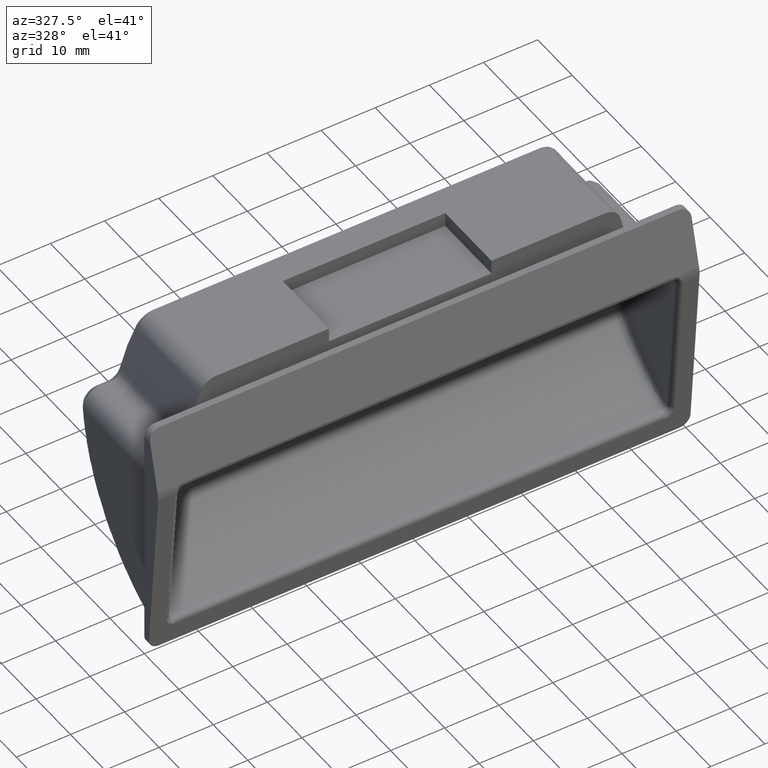
[diagram: clean part render]
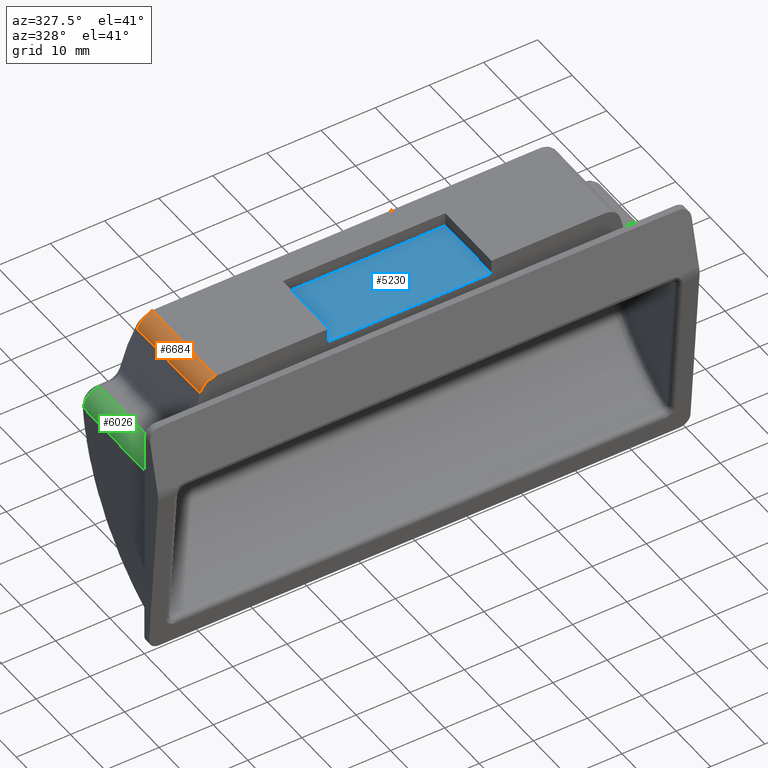
[diagram: same view with three faces highlighted in distinct colors, each labeled with its STEP entity id]
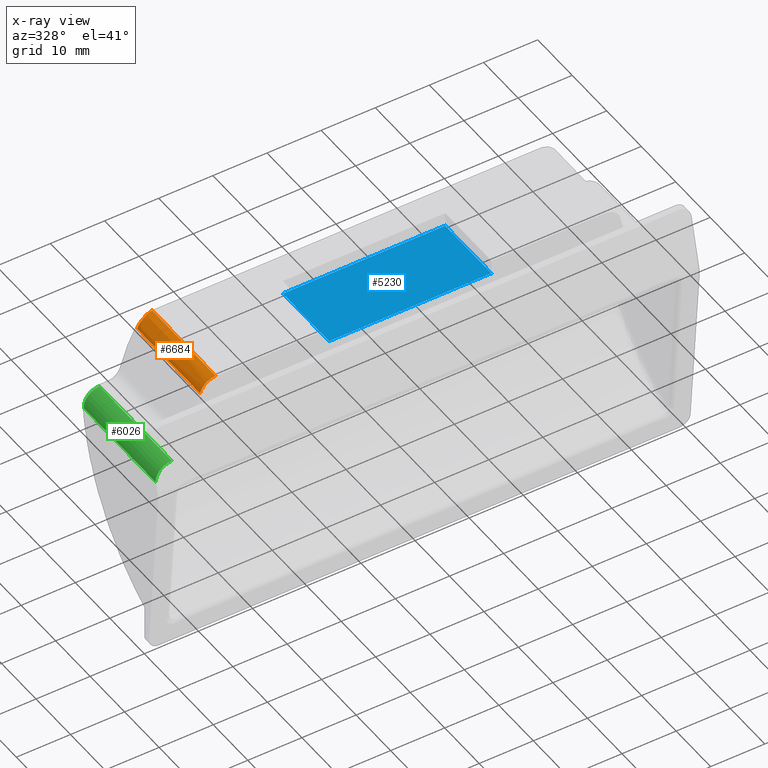
[diagram: x-ray of the same camera — body ghosted, the three highlighted faces saturated]
A machine part, auxiliary view with three faces highlighted in distinct colors.
The next image is the same camera in x-ray (body ghosted, the three faces saturated) — at least one of them is partly hidden behind the body in this view.
Their STEP definitions:

[orange] entity #6684 — the highlighted face is a freeform B-spline surface patch.
#129=CARTESIAN_POINT('',(-35.899999999999999,19.893540093386552,24.750000000000000));
#130=VERTEX_POINT('',#129);
#131=CARTESIAN_POINT('',(-38.808722864421448,19.651020783917801,22.484391787801499));
#132=VERTEX_POINT('',#131);
#133=CARTESIAN_POINT('',(-35.899999999999999,19.893540093386552,24.750000000000000));
#134=CARTESIAN_POINT('',(-35.977822523637457,19.872093214320358,24.748257649522181));
#135=CARTESIAN_POINT('',(-36.133921488300722,19.829074362436948,24.744762785915150));
#136=CARTESIAN_POINT('',(-36.369559904809563,19.772739629368079,24.716008205671852));
#137=CARTESIAN_POINT('',(-36.605110050800278,19.722172888793569,24.669352980742111));
#138=CARTESIAN_POINT('',(-36.839095366480159,19.677984703131671,24.602712595606668));
#139=CARTESIAN_POINT('',(-37.069731184582338,19.640005187144830,24.516262590902649));
#140=CARTESIAN_POINT('',(-37.295213479436029,19.608296197637220,24.409764097240860));
#141=CARTESIAN_POINT('',(-37.513667685246560,19.582779320085940,24.283285669954470));
#142=CARTESIAN_POINT('',(-37.775442634428138,19.558945029996512,24.100593132635840));
#143=CARTESIAN_POINT('',(-38.058329585102292,19.542226965265630,23.848991231965410));
#144=CARTESIAN_POINT('',(-38.333471673372159,19.540271278301290,23.521075792061779));
#145=CARTESIAN_POINT('',(-38.547265434958298,19.557439004925200,23.178263568081061));
#146=CARTESIAN_POINT('',(-38.708086090384981,19.591247738046519,22.832422030262990));
#147=CARTESIAN_POINT('',(-38.775821278857528,19.631478941464671,22.598174715671352));
#148=CARTESIAN_POINT('',(-38.808722864421448,19.651020783917801,22.484391787801499));
#149=B_SPLINE_CURVE_WITH_KNOTS('',3,(#133,#134,#135,#136,#137,#138,#139,#140,#141,#142,#143,#144,#145,#146,#147,#148),.UNSPECIFIED.,.F.,.U.,(4,1,1,1,1,1,1,1,1,1,1,1,1,4),(0.0,0.060430637077793,0.121213749450331,0.182396436964793,0.244024882586544,0.306144274325415,0.368798737188026,0.432031275273177,0.495883723935998,0.608238468000065,0.714610197973610,0.815197146646648,0.910234148170053,1.0),.UNSPECIFIED.);
#150=EDGE_CURVE('',#130,#132,#149,.T.);
#5319=CARTESIAN_POINT('',(-35.899999999999999,1.400000000000000,24.750000000000000));
#5320=VERTEX_POINT('',#5319);
#5326=CARTESIAN_POINT('',(-38.808722864421448,1.399999999999956,22.484391787801499));
#5327=VERTEX_POINT('',#5326);
#5328=CARTESIAN_POINT('',(-38.808722864421448,1.399999999999956,22.484391787801499));
#5329=CARTESIAN_POINT('',(-38.236704097778194,1.399999999999957,24.749999999999993));
#5330=CARTESIAN_POINT('',(-35.899999999999999,1.399999999999956,24.750000000000000));
#5338=(BOUNDED_CURVE()B_SPLINE_CURVE(2,(#5328,#5329,#5330),.UNSPECIFIED.,.F.,.U.)CURVE()GEOMETRIC_REPRESENTATION_ITEM()QUASI_UNIFORM_CURVE()RATIONAL_B_SPLINE_CURVE((1.0,0.788922449484270,1.0))REPRESENTATION_ITEM(''));
#5339=EDGE_CURVE('',#5327,#5320,#5338,.T.);
#6442=CARTESIAN_POINT('',(-35.899999999999999,19.893540093386552,24.750000000000000));
#6443=CARTESIAN_POINT('',(-35.899999999999999,1.400000000000000,24.750000000000000));
#6444=QUASI_UNIFORM_CURVE('',1,(#6442,#6443),.UNSPECIFIED.,.F.,.U.);
#6445=EDGE_CURVE('',#130,#5320,#6444,.T.);
#6452=CARTESIAN_POINT('',(-38.823333764478122,20.355878595721219,22.406919908854960));
#6453=CARTESIAN_POINT('',(-38.823611681800067,20.254681848009689,22.407005740030879));
#6454=CARTESIAN_POINT('',(-38.823080173477940,20.052288352586618,22.406875321177321));
#6455=CARTESIAN_POINT('',(-38.827890693977800,19.748698109452022,22.408302864972988));
#6456=CARTESIAN_POINT('',(-38.827146109011501,19.445107866317429,22.408059347495819));
#6457=CARTESIAN_POINT('',(-38.826930255950693,19.141517623182821,22.407991412635919));
#6458=CARTESIAN_POINT('',(-38.826955681837447,18.837927380048239,22.407997234789480));
#6459=CARTESIAN_POINT('',(-38.826928304080532,18.433140389202091,22.407988503783479));
#6460=CARTESIAN_POINT('',(-38.826919705715852,17.319976164375252,22.407984809693900));
#6461=CARTESIAN_POINT('',(-38.826919584377457,14.688860723875379,22.407984007437520));
#6462=CARTESIAN_POINT('',(-38.826932469644028,9.021842852029552,22.407993272071430));
#6463=CARTESIAN_POINT('',(-38.826954680950223,4.164398961875975,22.408000695890909));
#6464=CARTESIAN_POINT('',(-38.826949237026533,0.926103035106926,22.407997781218231));
#6465=CARTESIAN_POINT('',(-38.816961727770838,20.355878595721219,22.435439174559939));
#6466=CARTESIAN_POINT('',(-38.817227466084837,20.254681848009689,22.435521202117801));
#6467=CARTESIAN_POINT('',(-38.816689988125297,20.052288352586618,22.435387575776250));
#6468=CARTESIAN_POINT('',(-38.821265719895273,19.748698109452022,22.436746403903410));
#6469=CARTESIAN_POINT('',(-38.820656630824892,19.445107866317429,22.436541715399159));
#6470=CARTESIAN_POINT('',(-38.820544541379853,19.141517623182821,22.436508518085059));
#6471=CARTESIAN_POINT('',(-38.820538142049791,18.837927380048239,22.436504976987159));
#6472=CARTESIAN_POINT('',(-38.820528207752822,18.433140389202091,22.436501856123879));
#6473=CARTESIAN_POINT('',(-38.820521660417057,17.319976164375252,22.436499154053230));
#6474=CARTESIAN_POINT('',(-38.820522307084389,14.688860723875379,22.436498918356840));
#6475=CARTESIAN_POINT('',(-38.820529903053263,9.021842852029552,22.436504446679528));
#6476=CARTESIAN_POINT('',(-38.820544148612832,4.164398961875975,22.436509416558739));
#6477=CARTESIAN_POINT('',(-38.820540106434770,0.926103035106926,22.436507055342538));
#6478=CARTESIAN_POINT('',(-38.806792436580913,20.355878595721219,22.478042110003500));
#6479=CARTESIAN_POINT('',(-38.807010905745642,20.254681848009689,22.478110588618581));
#6480=CARTESIAN_POINT('',(-38.806648275631353,20.052288352586618,22.478021793390429));
#6481=CARTESIAN_POINT('',(-38.810214363874223,19.748698109452022,22.479097505551518));
#6482=CARTESIAN_POINT('',(-38.810318550913479,19.445107866317429,22.479089500754210));
#6483=CARTESIAN_POINT('',(-38.810299549688658,19.141517623182821,22.479092600205959));
#6484=CARTESIAN_POINT('',(-38.810310413954383,18.837927380048239,22.479093514161740));
#6485=CARTESIAN_POINT('',(-38.810308684192968,18.433140389202091,22.479093575406150));
#6486=CARTESIAN_POINT('',(-38.810309257957201,17.319976164375252,22.479093494071918));
#6487=CARTESIAN_POINT('',(-38.810309065678048,14.688860723875379,22.479093504743201));
#6488=CARTESIAN_POINT('',(-38.810309664109852,9.021842852029552,22.479093787868059));
#6489=CARTESIAN_POINT('',(-38.810311964847799,4.164398961875975,22.479095069296442));
#6490=CARTESIAN_POINT('',(-38.810310043077692,0.926103035106926,22.479093540231720));
#6491=CARTESIAN_POINT('',(-38.792024503512010,20.355878595721219,22.534469760706560));
#6492=CARTESIAN_POINT('',(-38.792141792798027,20.254681848009689,22.534509515788031));
#6493=CARTESIAN_POINT('',(-38.792273351705283,20.052288352586618,22.534553895614941));
#6494=CARTESIAN_POINT('',(-38.793639567564661,19.748698109452022,22.535009349258232));
#6495=CARTESIAN_POINT('',(-38.795732644440562,19.445107866317439,22.535558974578819));
#6496=CARTESIAN_POINT('',(-38.795369251188227,19.141517623182821,22.535479367111272));
#6497=CARTESIAN_POINT('',(-38.795480351991493,18.837927380048239,22.535506279093500));
#6498=CARTESIAN_POINT('',(-38.795459286647379,18.433140389202091,22.535502049258032));
#6499=CARTESIAN_POINT('',(-38.795473111368658,17.319976164375252,22.535506365171209));
#6500=CARTESIAN_POINT('',(-38.795469362406493,14.688860723875379,22.535505982532190));
#6501=CARTESIAN_POINT('',(-38.795461828852737,9.021842852029552,22.535499781111518));
#6502=CARTESIAN_POINT('',(-38.795448478369039,4.164398961875975,22.535496212694010));
#6503=CARTESIAN_POINT('',(-38.795449366652193,0.926103035106926,22.535495780510921));
#6504=CARTESIAN_POINT('',(-38.782293503570557,20.355878595721212,22.569575144460359));
#6505=CARTESIAN_POINT('',(-38.782356127521652,20.254681848009689,22.569598736822591));
#6506=CARTESIAN_POINT('',(-38.782760398759429,20.052288352586618,22.569720255908411));
#6507=CARTESIAN_POINT('',(-38.782921086504288,19.748698109452022,22.569820959557170));
#6508=CARTESIAN_POINT('',(-38.786389542775503,19.445107866317429,22.570773144634160));
#6509=CARTESIAN_POINT('',(-38.785493119288439,19.141517623182821,22.570546497173599));
#6510=CARTESIAN_POINT('',(-38.785723931939351,18.837927380048239,22.570606359106431));
#6511=CARTESIAN_POINT('',(-38.785669887076189,18.433140389202091,22.570593178671661));
#6512=CARTESIAN_POINT('',(-38.785695449637082,17.319976164375252,22.570601257311850));
#6513=CARTESIAN_POINT('',(-38.785687671365253,14.688860723875379,22.570600062001450));
#6514=CARTESIAN_POINT('',(-38.785675880644852,9.021842852029552,22.570590130224350));
#6515=CARTESIAN_POINT('',(-38.785652727498743,4.164398961875975,22.570583513312631));
#6516=CARTESIAN_POINT('',(-38.785655393576320,0.926103035106926,22.570583771045680));
#6517=CARTESIAN_POINT('',(-38.774209598423568,20.355878595721212,22.597559216087529));
#6518=CARTESIAN_POINT('',(-38.774241796881633,20.254681848009689,22.597573268439149));
#6519=CARTESIAN_POINT('',(-38.774794349377871,20.052288352586618,22.597739258376599));
#6520=CARTESIAN_POINT('',(-38.774269268248837,19.748698109452022,22.597626262151788));
#6521=CARTESIAN_POINT('',(-38.778602697818847,19.445107866317429,22.598844960524890));
#6522=CARTESIAN_POINT('',(-38.777315871769751,19.141517623182821,22.598505918541068));
#6523=CARTESIAN_POINT('',(-38.777617054174300,18.837927380048239,22.598585642944450));
#6524=CARTESIAN_POINT('',(-38.777538009975842,18.433140389202091,22.598565367603971));
#6525=CARTESIAN_POINT('',(-38.777570520748498,17.319976164375252,22.598575816741739));
#6526=CARTESIAN_POINT('',(-38.777560218373793,14.688860723875379,22.598574123280340));
#6527=CARTESIAN_POINT('',(-38.777544766487829,9.021842852029550,22.598561193720649));
#6528=CARTESIAN_POINT('',(-38.777514065052408,4.164398961875975,22.598552212043639));
#6529=CARTESIAN_POINT('',(-38.777518102662448,0.926103035106926,22.598553006779259));
#6530=CARTESIAN_POINT('',(-38.765926793026267,20.355878595721212,22.625475432663571));
#6531=CARTESIAN_POINT('',(-38.765937534523871,20.254681848009689,22.625482293839820));
#6532=CARTESIAN_POINT('',(-38.766591375745463,20.052288352586618,22.625680823934680));
#6533=CARTESIAN_POINT('',(-38.765569559265458,19.748698109452022,22.625403098160120));
#6534=CARTESIAN_POINT('',(-38.770563346617692,19.445107866317429,22.626836563521561));
#6535=CARTESIAN_POINT('',(-38.768960280724848,19.141517623182821,22.626402887616301));
#6536=CARTESIAN_POINT('',(-38.769308636460302,18.837927380048239,22.626496480688001));
#6537=CARTESIAN_POINT('',(-38.769206759947309,18.433140389202080,22.626469472345718));
#6538=CARTESIAN_POINT('',(-38.769244094378060,17.319976164375252,22.626481733373009));
#6539=CARTESIAN_POINT('',(-38.769231926372882,14.688860723875379,22.626479693990600));
#6540=CARTESIAN_POINT('',(-38.769212561712877,9.021842852029550,22.626463736136579));
#6541=CARTESIAN_POINT('',(-38.769174540840751,4.164398961875975,22.626452447766422));
#6542=CARTESIAN_POINT('',(-38.769179909334341,0.926103035106926,22.626453767742341));
#6543=CARTESIAN_POINT('',(-38.750910811907978,20.355878595721212,22.674147879321659));
#6544=CARTESIAN_POINT('',(-38.750907463479422,20.254681848009689,22.674148893942039));
#6545=CARTESIAN_POINT('',(-38.751615458577881,20.052288352586618,22.674369513185251));
#6546=CARTESIAN_POINT('',(-38.750223705518643,19.748698109452022,22.673946008972969));
#6547=CARTESIAN_POINT('',(-38.755802818051258,19.445107866317429,22.675598320084180));
#6548=CARTESIAN_POINT('',(-38.753873648377223,19.141517623182828,22.675057161878939));
#6549=CARTESIAN_POINT('',(-38.754240186743473,18.837927380048232,22.675157622940670));
#6550=CARTESIAN_POINT('',(-38.754105474656477,18.433140389202080,22.675120373364720));
#6551=CARTESIAN_POINT('',(-38.754145093909180,17.319976164375252,22.675134120297130));
#6552=CARTESIAN_POINT('',(-38.754131605679262,14.688860723875379,22.675131956946480));
#6553=CARTESIAN_POINT('',(-38.754104638360573,9.021842852029550,22.675110584298860));
#6554=CARTESIAN_POINT('',(-38.754054447037177,4.164398961875975,22.675095425760450));
#6555=CARTESIAN_POINT('',(-38.754062030059337,0.926103035106926,22.675097631054818));
#6556=CARTESIAN_POINT('',(-38.718805459162233,20.355878595721219,22.770747538791070));
#6557=CARTESIAN_POINT('',(-38.718842210264242,20.254681848009682,22.770755251744561));
#6558=CARTESIAN_POINT('',(-38.719322489437438,20.052288352586618,22.770934138804861));
#6559=CARTESIAN_POINT('',(-38.718653748739598,19.748698109452022,22.770609289888590));
#6560=CARTESIAN_POINT('',(-38.723502163513203,19.445107866317421,22.772205531125952));
#6561=CARTESIAN_POINT('',(-38.721819138820280,19.141517623182828,22.771668720157571));
#6562=CARTESIAN_POINT('',(-38.722012355552280,18.837927380048232,22.771731585843231));
#6563=CARTESIAN_POINT('',(-38.721826003703647,18.433140389202080,22.771674725317880));
#6564=CARTESIAN_POINT('',(-38.721847278497968,17.319976164375252,22.771685502774790));
#6565=CARTESIAN_POINT('',(-38.721838132927168,14.688860723875379,22.771684666083971));
#6566=CARTESIAN_POINT('',(-38.721793266558493,9.021842852029550,22.771652148029890));
#6567=CARTESIAN_POINT('',(-38.721721148274924,4.164398961875975,22.771629854375671));
#6568=CARTESIAN_POINT('',(-38.721732730899660,0.926103035106926,22.771633707668791));
#6569=CARTESIAN_POINT('',(-38.667059863007303,20.355878595721212,22.906487908450160));
#6570=CARTESIAN_POINT('',(-38.667179710830581,20.254681848009682,22.906521989492290));
#6571=CARTESIAN_POINT('',(-38.667347330949049,20.052288352586618,22.906596420295031));
#6572=CARTESIAN_POINT('',(-38.668362675992917,19.748698109452022,22.906806589084930));
#6573=CARTESIAN_POINT('',(-38.671287023181662,19.445107866317429,22.907949907901770));
#6574=CARTESIAN_POINT('',(-38.670156479379600,19.141517623182828,22.907421497656010));
#6575=CARTESIAN_POINT('',(-38.670088329604233,18.837927380048232,22.907434912619252));
#6576=CARTESIAN_POINT('',(-38.669831197422447,18.433140389202091,22.907348538130151));
#6577=CARTESIAN_POINT('',(-38.669772652866151,17.319976164375252,22.907339677190599));
#6578=CARTESIAN_POINT('',(-38.669784441161909,14.688860723875379,22.907344425158850));
#6579=CARTESIAN_POINT('',(-38.669708347344752,9.021842852029552,22.907295389225041));
#6580=CARTESIAN_POINT('',(-38.669610925901523,4.164398961875975,22.907264495064720));
#6581=CARTESIAN_POINT('',(-38.669627169539673,0.926103035106926,22.907270376315871));
#6582=CARTESIAN_POINT('',(-38.524363070771003,20.355878595721219,23.224218295960171));
#6583=CARTESIAN_POINT('',(-38.524580224326947,20.254681848009689,23.224294941760881));
#6584=CARTESIAN_POINT('',(-38.524819143948527,20.052288352586618,23.224342515472699));
#6585=CARTESIAN_POINT('',(-38.526959453099302,19.748698109452029,23.225165308888460));
#6586=CARTESIAN_POINT('',(-38.524709502118966,19.445107866317439,23.224107278435870));
#6587=CARTESIAN_POINT('',(-38.527382534694290,19.141517623182828,23.225230602696751));
#6588=CARTESIAN_POINT('',(-38.526762632957201,18.837927380048232,23.224969292192210));
#6589=CARTESIAN_POINT('',(-38.526614743679623,18.433140389202091,23.224947331680760));
#6590=CARTESIAN_POINT('',(-38.526190684594710,17.319976164375252,23.224824005966589));
#6591=CARTESIAN_POINT('',(-38.526299891557763,14.688860723875390,23.224860906897948));
#6592=CARTESIAN_POINT('',(-38.526130604194847,9.021842852029554,23.224767359748469));
#6593=CARTESIAN_POINT('',(-38.525991563504171,4.164398961875976,23.224722089820720));
#6594=CARTESIAN_POINT('',(-38.526015541860268,0.926103035106926,23.224731519682010));
#6595=CARTESIAN_POINT('',(-38.367318054821993,20.355878595721219,23.470436103648080));
#6596=CARTESIAN_POINT('',(-38.367457880122259,20.254681848009689,23.470481498603789));
#6597=CARTESIAN_POINT('',(-38.367905272672097,20.052288352586618,23.470624947397940));
#6598=CARTESIAN_POINT('',(-38.368048654591981,19.748698109452029,23.470638901281259));
#6599=CARTESIAN_POINT('',(-38.368751539615772,19.445107866317411,23.470935973845069));
#6600=CARTESIAN_POINT('',(-38.368974925778247,19.141517623182828,23.470941852538179));
#6601=CARTESIAN_POINT('',(-38.369302851561443,18.837927380048232,23.471092622399599));
#6602=CARTESIAN_POINT('',(-38.369184540798692,18.433140389202080,23.471066052997578));
#6603=CARTESIAN_POINT('',(-38.368784055542058,17.319976164375252,23.470961133084820));
#6604=CARTESIAN_POINT('',(-38.368807386415021,14.688860723875379,23.470965019701289));
#6605=CARTESIAN_POINT('',(-38.368632332931043,9.021842852029550,23.470865383626862));
#6606=CARTESIAN_POINT('',(-38.368452730944277,4.164398961875976,23.470804178880329));
#6607=CARTESIAN_POINT('',(-38.368485350017821,0.926103035106926,23.470817284080649));
#6608=CARTESIAN_POINT('',(-37.923398493479191,20.355878595721219,24.013007021597559));
#6609=CARTESIAN_POINT('',(-37.923469884792297,20.254681848009689,24.013036296784250));
#6610=CARTESIAN_POINT('',(-37.923539210009501,20.052288352586618,24.013155931984951));
#6611=CARTESIAN_POINT('',(-37.923877373409617,19.748698109452029,24.013173525550901));
#6612=CARTESIAN_POINT('',(-37.923910862379493,19.445107866317439,24.013174150844520));
#6613=CARTESIAN_POINT('',(-37.924140995256977,19.141517623182828,24.013320180717411));
#6614=CARTESIAN_POINT('',(-37.924365511892773,18.837927380048232,24.013387262023951));
#6615=CARTESIAN_POINT('',(-37.924610397846692,18.433140389202102,24.013485323943350));
#6616=CARTESIAN_POINT('',(-37.924528256849968,17.319976164375252,24.013477830480461));
#6617=CARTESIAN_POINT('',(-37.924310996412302,14.688860723875379,24.013396847217091));
#6618=CARTESIAN_POINT('',(-37.924148581642797,9.021842852029550,24.013297690320641));
#6619=CARTESIAN_POINT('',(-37.923900648039563,4.164398961875976,24.013207695017378));
#6620=CARTESIAN_POINT('',(-37.923949648680463,0.926103035106927,24.013227682956369));
#6621=CARTESIAN_POINT('',(-37.546816435626610,20.355878595721219,24.300330990986570));
#6622=CARTESIAN_POINT('',(-37.546868309383832,20.254681848009689,24.300364906909490));
#6623=CARTESIAN_POINT('',(-37.546985670203753,20.052288352586618,24.300174270381891));
#6624=CARTESIAN_POINT('',(-37.547091406728597,19.748698109452022,24.300599707820300));
#6625=CARTESIAN_POINT('',(-37.547284224819307,19.445107866317411,24.300611158968721));
#6626=CARTESIAN_POINT('',(-37.547402623007493,19.141517623182821,24.300629103735918));
#6627=CARTESIAN_POINT('',(-37.547520726000599,18.837927380048232,24.300714254188609));
#6628=CARTESIAN_POINT('',(-37.547656081702463,18.433140389202102,24.300783027427890));
#6629=CARTESIAN_POINT('',(-37.547753235593589,17.319976164375252,24.300816501193200));
#6630=CARTESIAN_POINT('',(-37.547562831211970,14.688860723875379,24.300735596415588));
#6631=CARTESIAN_POINT('',(-37.547349211461352,9.021842852029550,24.300630529445950));
#6632=CARTESIAN_POINT('',(-37.547132152781138,4.164398961875977,24.300544410615370));
#6633=CARTESIAN_POINT('',(-37.547178189226003,0.926103035106926,24.300563918735680));
#6634=CARTESIAN_POINT('',(-36.692822182086367,20.355878595721219,24.680766657550912));
#6635=CARTESIAN_POINT('',(-36.692841252433169,20.254681848009689,24.680795174928850));
#6636=CARTESIAN_POINT('',(-36.692904726414213,20.052288352586629,24.681746982764690));
#6637=CARTESIAN_POINT('',(-36.692921542727902,19.748698109452029,24.680570895270229));
#6638=CARTESIAN_POINT('',(-36.692979892188163,19.445107866317429,24.680933943955569));
#6639=CARTESIAN_POINT('',(-36.693054595045631,19.141517623182828,24.681040047415291));
#6640=CARTESIAN_POINT('',(-36.693107229568803,18.837927380048232,24.681018498191030));
#6641=CARTESIAN_POINT('',(-36.693169493123889,18.433140389202091,24.681016478268720));
#6642=CARTESIAN_POINT('',(-36.693255280132462,17.319976164375259,24.680961627365988));
#6643=CARTESIAN_POINT('',(-36.693235339451192,14.688860723875379,24.680982024953980));
#6644=CARTESIAN_POINT('',(-36.693011262523250,9.021842852029552,24.680874417072090));
#6645=CARTESIAN_POINT('',(-36.692907495861050,4.164398961875977,24.680832299707259));
#6646=CARTESIAN_POINT('',(-36.692931496059060,0.926103035106926,24.680841888975671));
#6647=CARTESIAN_POINT('',(-36.227230670483031,20.355878595721212,24.767675313416891));
#6648=CARTESIAN_POINT('',(-36.227248075640972,20.254681848009689,24.767785111274119));
#6649=CARTESIAN_POINT('',(-36.227196545891857,20.052288352586601,24.766106155274041));
#6650=CARTESIAN_POINT('',(-36.227344040027482,19.748698109452022,24.769105286052451));
#6651=CARTESIAN_POINT('',(-36.227317152563387,19.445107866317439,24.768742057808499));
#6652=CARTESIAN_POINT('',(-36.227328318062220,19.141517623182828,24.768621223325969));
#6653=CARTESIAN_POINT('',(-36.227347596275152,18.837927380048239,24.768575921098510));
#6654=CARTESIAN_POINT('',(-36.227373738755738,18.433140389202070,24.768553849095191));
#6655=CARTESIAN_POINT('',(-36.227432880531829,17.319976164375269,24.768593911585111));
#6656=CARTESIAN_POINT('',(-36.227446256109047,14.688860723875379,24.768590898237061));
#6657=CARTESIAN_POINT('',(-36.227312041999838,9.021842852029554,24.768538911828340));
#6658=CARTESIAN_POINT('',(-36.227271568342331,4.164398961875977,24.768515800422900));
#6659=CARTESIAN_POINT('',(-36.227279695898098,0.926103035106926,24.768520245130759));
#6660=CARTESIAN_POINT('',(-35.760221148165762,20.355878595721219,24.746119608029030));
#6661=CARTESIAN_POINT('',(-35.760229370756448,20.254681848009689,24.746139892484582));
#6662=CARTESIAN_POINT('',(-35.760271884943293,20.052288352586629,24.746800894964160));
#6663=CARTESIAN_POINT('',(-35.760264515263742,19.748698109452022,24.747076029861081));
#6664=CARTESIAN_POINT('',(-35.760238826923441,19.445107866317429,24.746611781684940));
#6665=CARTESIAN_POINT('',(-35.760236469165861,19.141517623182828,24.746738651570350));
#6666=CARTESIAN_POINT('',(-35.760226851706321,18.837927380048239,24.746713381298541));
#6667=CARTESIAN_POINT('',(-35.760215876664873,18.433140389202091,24.746722212276371));
#6668=CARTESIAN_POINT('',(-35.760195359191819,17.319976164375259,24.746715090511959));
#6669=CARTESIAN_POINT('',(-35.760191873215689,14.688860723875379,24.746714652262760));
#6670=CARTESIAN_POINT('',(-35.760242984427919,9.021842852029552,24.746735765473780));
#6671=CARTESIAN_POINT('',(-35.760265482593368,4.164398961875978,24.746746533042138));
#6672=CARTESIAN_POINT('',(-35.760253693217642,0.926103035106928,24.746742109838141));
#6673=B_SPLINE_SURFACE_WITH_KNOTS('',3,3,((#6452,#6465,#6478,#6491,#6504,#6517,#6530,#6543,#6556,#6569,#6582,#6595,#6608,#6621,#6634,#6647,#6660),(#6453,#6466,#6479,#6492,#6505,#6518,#6531,#6544,#6557,#6570,#6583,#6596,#6609,#6622,#6635,#6648,#6661),(#6454,#6467,#6480,#6493,#6506,#6519,#6532,#6545,#6558,#6571,#6584,#6597,#6610,#6623,#6636,#6649,#6662),(#6455,#6468,#6481,#6494,#6507,#6520,#6533,#6546,#6559,#6572,#6585,#6598,#6611,#6624,#6637,#6650,#6663),(#6456,#6469,#6482,#6495,#6508,#6521,#6534,#6547,#6560,#6573,#6586,#6599,#6612,#6625,#6638,#6651,#6664),(#6457,#6470,#6483,#6496,#6509,#6522,#6535,#6548,#6561,#6574,#6587,#6600,#6613,#6626,#6639,#6652,#6665),(#6458,#6471,#6484,#6497,#6510,#6523,#6536,#6549,#6562,#6575,#6588,#6601,#6614,#6627,#6640,#6653,#6666),(#6459,#6472,#6485,#6498,#6511,#6524,#6537,#6550,#6563,#6576,#6589,#6602,#6615,#6628,#6641,#6654,#6667),(#6460,#6473,#6486,#6499,#6512,#6525,#6538,#6551,#6564,#6577,#6590,#6603,#6616,#6629,#6642,#6655,#6668),(#6461,#6474,#6487,#6500,#6513,#6526,#6539,#6552,#6565,#6578,#6591,#6604,#6617,#6630,#6643,#6656,#6669),(#6462,#6475,#6488,#6501,#6514,#6527,#6540,#6553,#6566,#6579,#6592,#6605,#6618,#6631,#6644,#6657,#6670),(#6463,#6476,#6489,#6502,#6515,#6528,#6541,#6554,#6567,#6580,#6593,#6606,#6619,#6632,#6645,#6658,#6671),(#6464,#6477,#6490,#6503,#6516,#6529,#6542,#6555,#6568,#6581,#6594,#6607,#6620,#6633,#6646,#6659,#6672)),.UNSPECIFIED.,.F.,.F.,.U.,(4,1,1,1,1,1,1,1,1,1,4),(4,1,1,1,1,1,1,1,1,1,2,2,4),(0.0,0.303590243134598,0.607180486269197,0.910770729403795,1.214360972538393,1.517951215672991,1.821541458807590,2.428721945076786,4.857443890153572,9.714887780307144,19.429775560614289),(0.0,0.062500000000000,0.093750000000000,0.125000000000000,0.140625000000000,0.156250000000000,0.187500000000000,0.250000000000000,0.375000000000000,0.500000000000000,1.0,2.0,3.0),.UNSPECIFIED.);
#6674=ORIENTED_EDGE('',*,*,#6445,.F.);
#6675=ORIENTED_EDGE('',*,*,#150,.T.);
#6676=CARTESIAN_POINT('',(-38.808722864421448,19.651020783917801,22.484391787801499));
#6677=CARTESIAN_POINT('',(-38.808722864421448,1.399999999999956,22.484391787801499));
#6678=QUASI_UNIFORM_CURVE('',1,(#6676,#6677),.UNSPECIFIED.,.F.,.U.);
#6679=EDGE_CURVE('',#132,#5327,#6678,.T.);
#6680=ORIENTED_EDGE('',*,*,#6679,.T.);
#6681=ORIENTED_EDGE('',*,*,#5339,.T.);
#6682=EDGE_LOOP('',(#6674,#6675,#6680,#6681));
#6683=FACE_OUTER_BOUND('',#6682,.T.);
#6684=ADVANCED_FACE('',(#6683),#6673,.T.);

[blue] entity #5230 — the highlighted face is a freeform B-spline surface patch.
#5172=CARTESIAN_POINT('',(15.0,14.800000000000001,22.149999999999999));
#5173=VERTEX_POINT('',#5172);
#5188=CARTESIAN_POINT('',(-15.0,14.800000000000001,22.149999999999999));
#5189=VERTEX_POINT('',#5188);
#5195=CARTESIAN_POINT('',(-15.0,14.800000000000001,22.149999999999999));
#5196=CARTESIAN_POINT('',(15.0,14.800000000000001,22.149999999999999));
#5197=QUASI_UNIFORM_CURVE('',1,(#5195,#5196),.UNSPECIFIED.,.F.,.U.);
#5198=EDGE_CURVE('',#5189,#5173,#5197,.T.);
#5203=CARTESIAN_POINT('',(16.498499941854181,0.730669900182142,22.149999999999999));
#5204=CARTESIAN_POINT('',(-16.498500746516889,0.730669900182142,22.149999999999999));
#5205=CARTESIAN_POINT('',(16.498499941854181,15.469330339428490,22.149999999999999));
#5206=CARTESIAN_POINT('',(-16.498500746516889,15.469330339428490,22.149999999999999));
#5207=B_SPLINE_SURFACE_WITH_KNOTS('',1,1,((#5203,#5205),(#5204,#5206)),.UNSPECIFIED.,.F.,.F.,.U.,(2,2),(2,2),(0.0,32.997000688371060),(0.0,14.738660439246351),.UNSPECIFIED.);
#5208=CARTESIAN_POINT('',(-15.0,1.400000000000000,22.149999999999999));
#5209=VERTEX_POINT('',#5208);
#5210=CARTESIAN_POINT('',(15.0,1.399999999999956,22.149999999999999));
#5211=VERTEX_POINT('',#5210);
#5212=CARTESIAN_POINT('',(-15.0,1.400000000000000,22.149999999999999));
#5213=CARTESIAN_POINT('',(15.0,1.399999999999956,22.149999999999999));
#5214=QUASI_UNIFORM_CURVE('',1,(#5212,#5213),.UNSPECIFIED.,.F.,.U.);
#5215=EDGE_CURVE('',#5209,#5211,#5214,.T.);
#5216=ORIENTED_EDGE('',*,*,#5215,.T.);
#5217=CARTESIAN_POINT('',(15.0,14.800000000000001,22.149999999999999));
#5218=CARTESIAN_POINT('',(15.0,1.399999999999956,22.149999999999999));
#5219=QUASI_UNIFORM_CURVE('',1,(#5217,#5218),.UNSPECIFIED.,.F.,.U.);
#5220=EDGE_CURVE('',#5173,#5211,#5219,.T.);
#5221=ORIENTED_EDGE('',*,*,#5220,.F.);
#5222=ORIENTED_EDGE('',*,*,#5198,.F.);
#5223=CARTESIAN_POINT('',(-15.0,14.800000000000001,22.149999999999999));
#5224=CARTESIAN_POINT('',(-15.0,1.400000000000000,22.149999999999999));
#5225=QUASI_UNIFORM_CURVE('',1,(#5223,#5224),.UNSPECIFIED.,.F.,.U.);
#5226=EDGE_CURVE('',#5189,#5209,#5225,.T.);
#5227=ORIENTED_EDGE('',*,*,#5226,.T.);
#5228=EDGE_LOOP('',(#5216,#5221,#5222,#5227));
#5229=FACE_OUTER_BOUND('',#5228,.T.);
#5230=ADVANCED_FACE('',(#5229),#5207,.F.);

[green] entity #6026 — the highlighted face is a freeform B-spline surface patch.
#419=CARTESIAN_POINT('',(-44.900000000000013,20.980564115340751,12.449999999999999));
#420=VERTEX_POINT('',#419);
#560=CARTESIAN_POINT('',(-47.899999999999999,20.856489700101001,9.449999999999900));
#561=VERTEX_POINT('',#560);
#575=CARTESIAN_POINT('',(-44.900000000000013,20.980564115340751,12.449999999999999));
#576=CARTESIAN_POINT('',(-45.098181270202900,20.980564115340758,12.449999999999999));
#577=CARTESIAN_POINT('',(-45.293051557126432,20.980138746253260,12.430555061973310));
#578=CARTESIAN_POINT('',(-45.580593323822328,20.978826844291291,12.373412770816261));
#579=CARTESIAN_POINT('',(-45.675640728302248,20.978275241499482,12.349668196741449));
#580=CARTESIAN_POINT('',(-45.864099241759789,20.976912541060351,12.292570463969749));
#581=CARTESIAN_POINT('',(-45.957761544180073,20.976097229705388,12.259057604764459));
#582=CARTESIAN_POINT('',(-46.230209361845382,20.973259213847172,12.146145303685500));
#583=CARTESIAN_POINT('',(-46.402502008634841,20.970840698944301,12.054018319069300));
#584=CARTESIAN_POINT('',(-46.606296446610237,20.966943241581220,11.917985801627490));
#585=CARTESIAN_POINT('',(-46.646471559719110,20.966119468083068,11.889726222440309));
#586=CARTESIAN_POINT('',(-46.725635543376541,20.964375493938711,11.831067368247030));
#587=CARTESIAN_POINT('',(-46.764726116760563,20.963452644256421,11.800582903330710));
#588=CARTESIAN_POINT('',(-46.879369091613029,20.960546772475020,11.706517649611170));
#589=CARTESIAN_POINT('',(-46.952111266807272,20.958433150734098,11.640526911295851));
#590=CARTESIAN_POINT('',(-47.159623106469212,20.951499708775639,11.433022596589931));
#591=CARTESIAN_POINT('',(-47.283779191218471,20.946093577740609,11.282066843645559));
#592=CARTESIAN_POINT('',(-47.420821935332739,20.938065399691599,11.077232706114749));
#593=CARTESIAN_POINT('',(-47.447381120854743,20.936390878334048,11.035334634717790));
#594=CARTESIAN_POINT('',(-47.498156941951969,20.932937332642339,10.950672177362501));
#595=CARTESIAN_POINT('',(-47.522405775585590,20.931157154610229,10.907873188698410));
#596=CARTESIAN_POINT('',(-47.591798184052458,20.925650613540419,10.778099273749350));
#597=CARTESIAN_POINT('',(-47.675392963343008,20.917866163410778,10.601402038272481));
#598=CARTESIAN_POINT('',(-47.741403497497743,20.909127821345390,10.417489829492681));
#599=CARTESIAN_POINT('',(-47.784229402580451,20.902185605269871,10.276815187772630));
#600=CARTESIAN_POINT('',(-47.797389074531559,20.899806735437590,10.229466084841061));
#601=CARTESIAN_POINT('',(-47.821437682914443,20.894913503666871,10.133836743294710));
#602=CARTESIAN_POINT('',(-47.832336521688298,20.892395035502659,10.085482400108500));
#603=CARTESIAN_POINT('',(-47.880623801148893,20.879565164685520,9.843506635802754));
#604=CARTESIAN_POINT('',(-47.899999999999977,20.868468909843969,9.647814517564715));
#605=CARTESIAN_POINT('',(-47.899999999999999,20.856489700101001,9.449999999999900));
#606=B_SPLINE_CURVE_WITH_KNOTS('',3,(#575,#576,#577,#578,#579,#580,#581,#582,#583,#584,#585,#586,#587,#588,#589,#590,#591,#592,#593,#594,#595,#596,#597,#598,#599,#600,#601,#602,#603,#604,#605),.UNSPECIFIED.,.F.,.U.,(4,2,2,2,2,2,2,2,2,2,2,1,2,2,2,4),(0.0,0.125000000000005,0.187500000000007,0.250000000000010,0.375000000000019,0.406250000000020,0.437500000000021,0.500000000000020,0.625000000000016,0.656250000000013,0.687500000000011,0.750000000000008,0.812500000000004,0.843750000000003,0.875000000000002,1.0),.UNSPECIFIED.);
#607=EDGE_CURVE('',#420,#561,#606,.T.);
#5831=CARTESIAN_POINT('',(-44.900000000000013,0.0,12.449999999999999));
#5832=VERTEX_POINT('',#5831);
#5838=CARTESIAN_POINT('',(-47.899999999999999,0.0,9.449999999999900));
#5839=VERTEX_POINT('',#5838);
#5840=CARTESIAN_POINT('',(-44.900000000000013,0.0,12.449999999999900));
#5841=CARTESIAN_POINT('',(-47.899999999999999,0.0,12.449999999999900));
#5842=CARTESIAN_POINT('',(-47.900000000000013,0.0,9.449999999999900));
#5850=(BOUNDED_CURVE()B_SPLINE_CURVE(2,(#5840,#5841,#5842),.UNSPECIFIED.,.F.,.U.)CURVE()GEOMETRIC_REPRESENTATION_ITEM()QUASI_UNIFORM_CURVE()RATIONAL_B_SPLINE_CURVE((1.0,0.707106781186548,1.0))REPRESENTATION_ITEM(''));
#5851=EDGE_CURVE('',#5832,#5839,#5850,.T.);
#5993=CARTESIAN_POINT('',(-44.900000000000013,20.980564115340751,12.449999999999999));
#5994=CARTESIAN_POINT('',(-44.900000000000013,0.0,12.449999999999999));
#5995=QUASI_UNIFORM_CURVE('',1,(#5993,#5994),.UNSPECIFIED.,.F.,.U.);
#5996=EDGE_CURVE('',#420,#5832,#5995,.T.);
#6002=CARTESIAN_POINT('',(-47.899885769192522,21.505078218224270,9.423820393504780));
#6003=CARTESIAN_POINT('',(-47.899885769192522,-0.537626955455607,9.423820393504780));
#6004=CARTESIAN_POINT('',(-47.927959960038649,21.505078218224263,12.640804026035159));
#6005=CARTESIAN_POINT('',(-47.927959960038649,-0.537626955455607,12.640804026035159));
#6006=CARTESIAN_POINT('',(-44.716854381395443,21.505078218224270,12.444404395265501));
#6007=CARTESIAN_POINT('',(-44.716854381395443,-0.537626955455607,12.444404395265501));
#6015=(BOUNDED_SURFACE()B_SPLINE_SURFACE(1,2,((#6002,#6004,#6006),(#6003,#6005,#6007)),.UNSPECIFIED.,.F.,.F.,.U.)B_SPLINE_SURFACE_WITH_KNOTS((2,2),(3,3),(0.0,22.042705173679870),(0.0,5.217748499531205),.UNSPECIFIED.)GEOMETRIC_REPRESENTATION_ITEM()RATIONAL_B_SPLINE_SURFACE(((1.0,0.681998360062499,1.0),(1.0,0.681998360062499,1.0)))REPRESENTATION_ITEM('')SURFACE());
#6016=ORIENTED_EDGE('',*,*,#5996,.F.);
#6017=ORIENTED_EDGE('',*,*,#607,.T.);
#6018=CARTESIAN_POINT('',(-47.899999999999999,20.856489700101001,9.449999999999900));
#6019=CARTESIAN_POINT('',(-47.899999999999999,0.0,9.449999999999900));
#6020=QUASI_UNIFORM_CURVE('',1,(#6018,#6019),.UNSPECIFIED.,.F.,.U.);
#6021=EDGE_CURVE('',#561,#5839,#6020,.T.);
#6022=ORIENTED_EDGE('',*,*,#6021,.T.);
#6023=ORIENTED_EDGE('',*,*,#5851,.F.);
#6024=EDGE_LOOP('',(#6016,#6017,#6022,#6023));
#6025=FACE_OUTER_BOUND('',#6024,.T.);
#6026=ADVANCED_FACE('',(#6025),#6015,.T.);